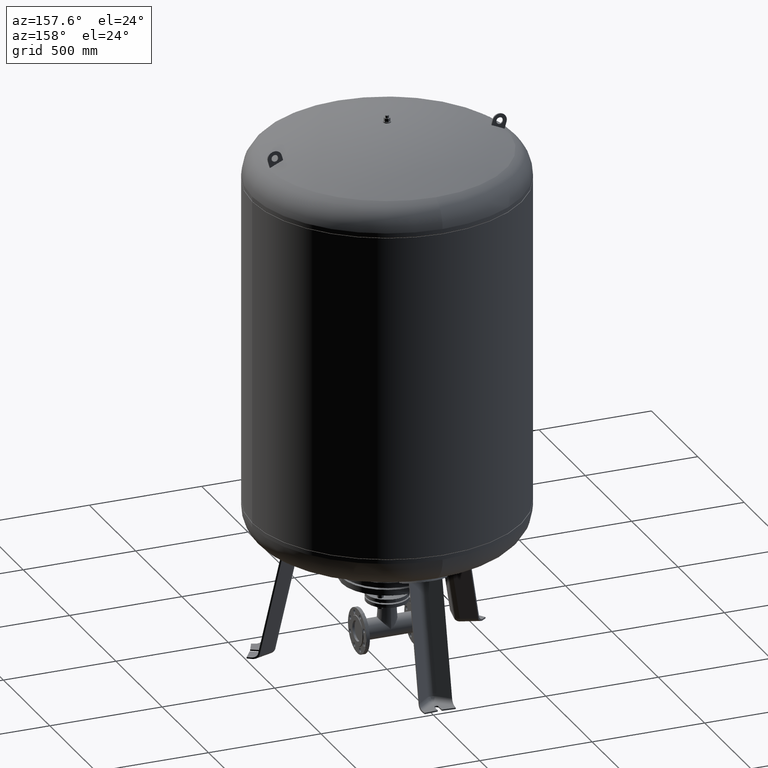
[diagram: clean part render]
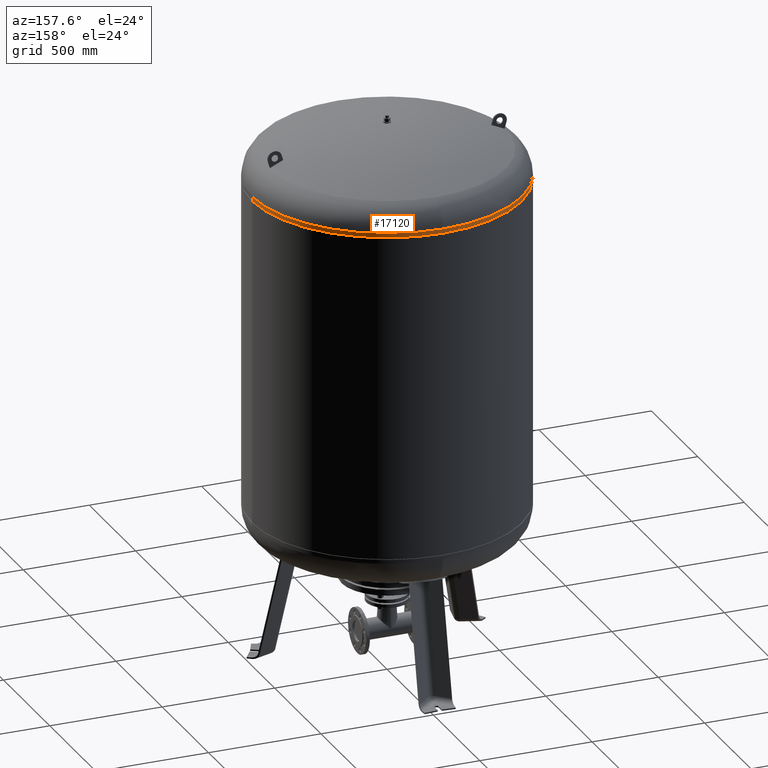
[diagram: same view with one face highlighted and labeled with its STEP entity id]
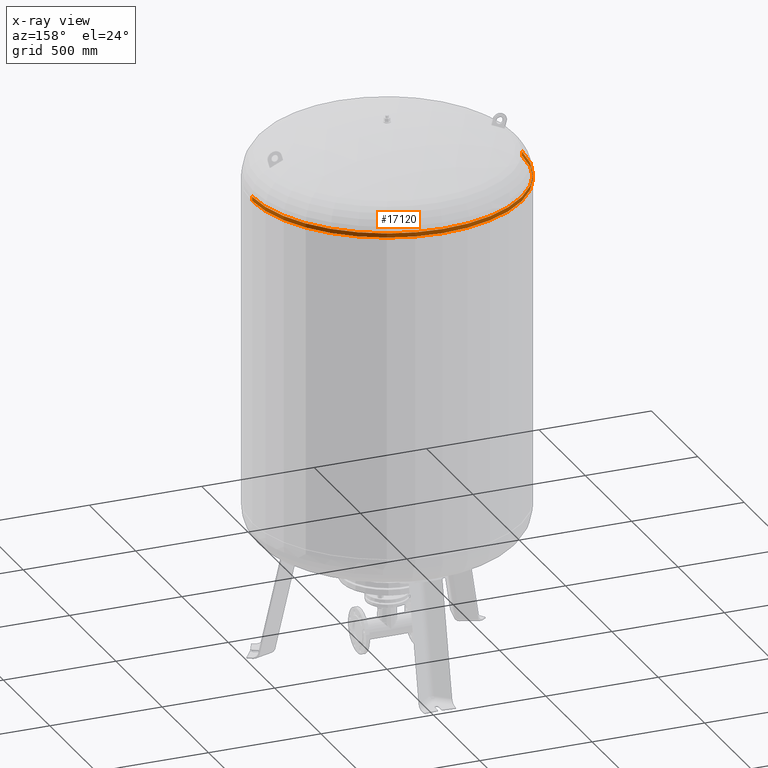
[diagram: x-ray of the same camera — body ghosted, the highlighted face saturated]
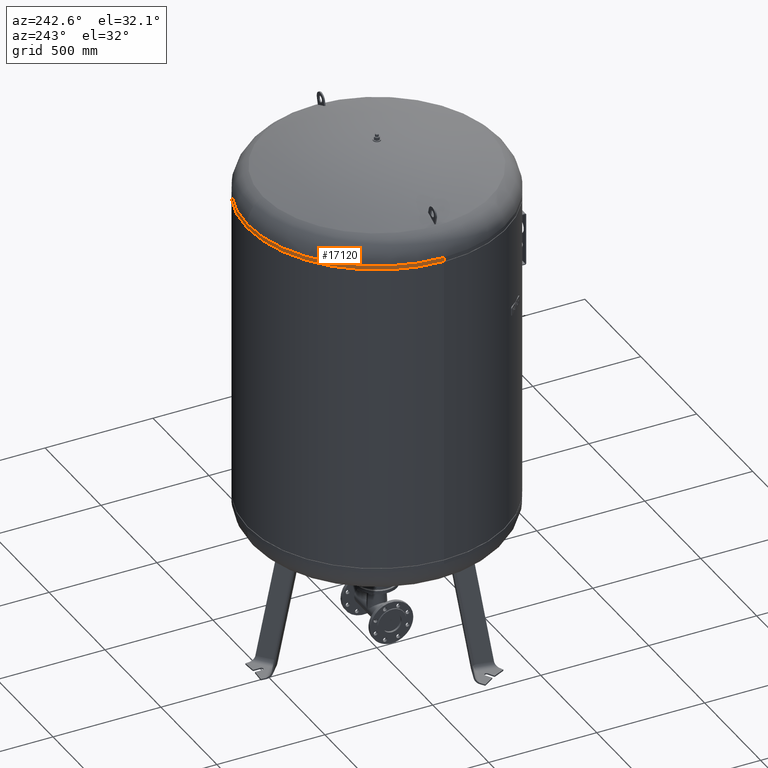
[diagram: same view with one face highlighted and labeled with its STEP entity id]
A machine part, auxiliary view. The second image highlights one B-rep face of the part: STEP entity #17120.
The next image is the same camera in x-ray: the body ghosted, the highlighted face saturated — about 0% of this face is hidden behind the body in this view.
A second angle (auxiliary view) of the same face is appended — the face is thin or edge-on in the first view.
In plain terms, the highlighted cylindrical surface (partial cylindrical patch) has radius 600 mm, axis along (0, -0, -1).
Its self-contained STEP definition (entity closure, byte-faithful):
#17070=CARTESIAN_POINT('',(6.869496E-015,-4.510566E-014,2173.456228716863700));
#17071=DIRECTION('',(2.797667E-017,-1.836970E-016,-1.0));
#17072=DIRECTION('',(1.0,0.0,0.0));
#17073=AXIS2_PLACEMENT_3D('',#17070,#17071,#17072);
#17074=CYLINDRICAL_SURFACE('',#17073,599.999999999999890);
#17075=CARTESIAN_POINT('',(600.000000000000110,-4.684274E-014,2164.0));
#17076=VERTEX_POINT('',#17075);
#17077=CARTESIAN_POINT('',(600.0,-4.336858E-014,2182.912457433727900));
#17078=VERTEX_POINT('',#17077);
#17079=CARTESIAN_POINT('',(600.000000000000110,-4.684274E-014,2164.0));
#17080=DIRECTION('',(0.0,0.0,1.0));
#17081=VECTOR('',#17080,18.912457433727923);
#17082=LINE('',#17079,#17081);
#17083=EDGE_CURVE('',#17076,#17078,#17082,.T.);
#17084=ORIENTED_EDGE('',*,*,#17083,.F.);
#17085=CARTESIAN_POINT('',(-599.999999999999890,2.663364E-014,2164.0));
#17086=VERTEX_POINT('',#17085);
#17087=CARTESIAN_POINT('',(7.134050E-015,-4.684274E-014,2164.0));
#17088=DIRECTION('',(0.0,0.0,-1.0));
#17089=DIRECTION('',(1.0,0.0,0.0));
#17090=AXIS2_PLACEMENT_3D('',#17087,#17088,#17089);
#17091=CIRCLE('',#17090,600.0);
#17092=EDGE_CURVE('',#17086,#17076,#17091,.T.);
#17093=ORIENTED_EDGE('',*,*,#17092,.F.);
#17094=CARTESIAN_POINT('',(-599.999999999999890,3.010780E-014,2182.912457433727500));
#17095=VERTEX_POINT('',#17094);
#17096=CARTESIAN_POINT('',(-599.999999999999890,2.663364E-014,2164.0));
#17097=DIRECTION('',(0.0,0.0,1.0));
#17098=VECTOR('',#17097,18.912457433727468);
#17099=LINE('',#17096,#17098);
#17100=EDGE_CURVE('',#17086,#17095,#17099,.T.);
#17101=ORIENTED_EDGE('',*,*,#17100,.T.);
#17102=CARTESIAN_POINT('',(1.156183E-013,600.0,2182.912457433727500));
#17103=VERTEX_POINT('',#17102);
#17104=CARTESIAN_POINT('',(6.604942E-015,-4.336858E-014,2182.912457433727500));
#17105=DIRECTION('',(0.0,0.0,-1.0));
#17106=DIRECTION('',(1.0,0.0,0.0));
#17107=AXIS2_PLACEMENT_3D('',#17104,#17105,#17106);
#17108=CIRCLE('',#17107,600.0);
#17109=EDGE_CURVE('',#17095,#17103,#17108,.T.);
#17110=ORIENTED_EDGE('',*,*,#17109,.T.);
#17111=CARTESIAN_POINT('',(6.604942E-015,-4.336858E-014,2182.912457433727500));
#17112=DIRECTION('',(0.0,0.0,-1.0));
#17113=DIRECTION('',(1.0,0.0,0.0));
#17114=AXIS2_PLACEMENT_3D('',#17111,#17112,#17113);
#17115=CIRCLE('',#17114,600.0);
#17116=EDGE_CURVE('',#17103,#17078,#17115,.T.);
#17117=ORIENTED_EDGE('',*,*,#17116,.T.);
#17118=EDGE_LOOP('',(#17084,#17093,#17101,#17110,#17117));
#17119=FACE_OUTER_BOUND('',#17118,.T.);
#17120=ADVANCED_FACE('',(#17119),#17074,.T.);